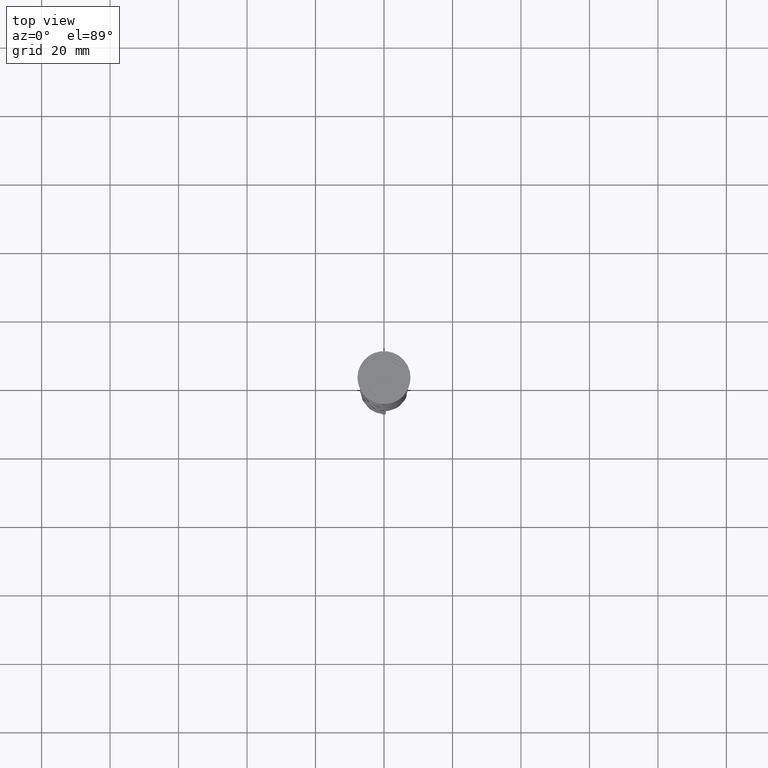
[diagram: clean part render]
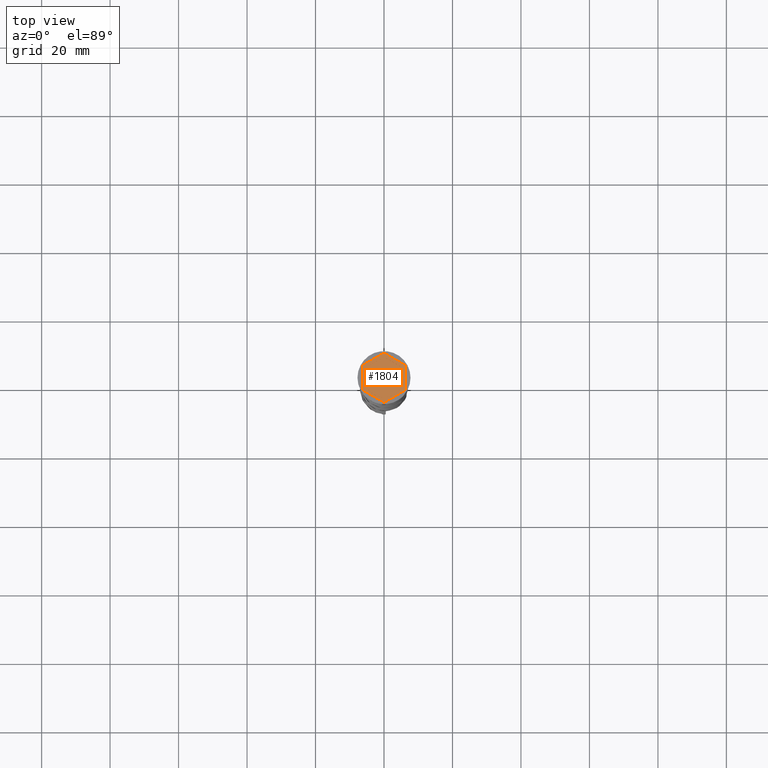
[diagram: same view with one face highlighted and labeled with its STEP entity id]
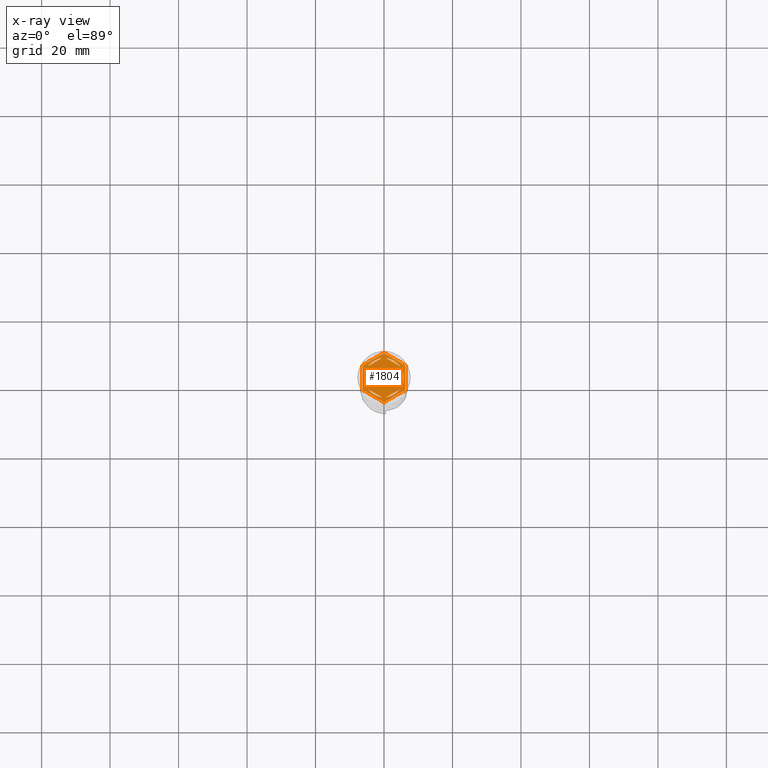
[diagram: x-ray of the same camera — body ghosted, the highlighted face saturated]
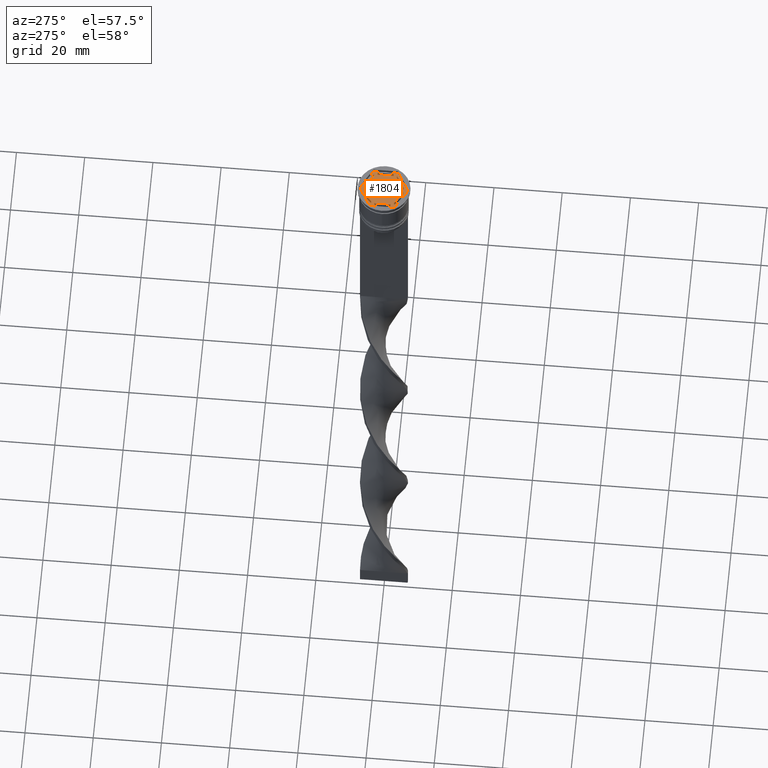
[diagram: same view with one face highlighted and labeled with its STEP entity id]
A machine part, top view. The second image highlights one B-rep face of the part: STEP entity #1804.
The next image is the same camera in x-ray: the body ghosted, the highlighted face saturated — about 0% of this face is hidden behind the body in this view.
A second angle (auxiliary view) of the same face is appended — the face is thin or edge-on in the first view.
In plain terms, the highlighted planar face has unit normal (0, 0, 1).
Its self-contained STEP definition (entity closure, byte-faithful):
#2 = CARTESIAN_POINT ( 'NONE',  ( 0.5939903988410126789, 5.719237309824160675, -1.000000000000000888 ) ) ;
#11 = CIRCLE ( 'NONE', #2467, 5.750000000000000000 ) ;
#16 = DIRECTION ( 'NONE',  ( -0.8660254037844384856, 0.5000000000000002220, 0.000000000000000000 ) ) ;
#46 = CARTESIAN_POINT ( 'NONE',  ( -5.249999999999999112, 3.031088913245535199, -1.000000000000000888 ) ) ;
#56 = CARTESIAN_POINT ( 'NONE',  ( 0.000000000000000000, 7.216878364870320084, -1.000000000000000000 ) ) ;
#98 = ORIENTED_EDGE ( 'NONE', *, *, #835, .F. ) ;
#127 = CIRCLE ( 'NONE', #3752, 5.750000000000000000 ) ;
#189 = CIRCLE ( 'NONE', #1109, 5.750000000000000000 ) ;
#217 = DIRECTION ( 'NONE',  ( 1.000000000000000000, 0.000000000000000000, 0.000000000000000000 ) ) ;
#232 = CARTESIAN_POINT ( 'NONE',  ( 8.673617379884035472E-16, 6.062177826491070398, -1.000000000000000888 ) ) ;
#238 = CARTESIAN_POINT ( 'NONE',  ( 6.249999999999998224, -3.608439182435161374, -1.000000000000000000 ) ) ;
#250 = DIRECTION ( 'NONE',  ( 1.000000000000000000, 0.000000000000000000, 0.000000000000000000 ) ) ;
#292 = EDGE_CURVE ( 'NONE', #1381, #1627, #629, .T. ) ;
#318 = DIRECTION ( 'NONE',  ( 0.000000000000000000, 1.000000000000000000, 0.000000000000000000 ) ) ;
#328 = CARTESIAN_POINT ( 'NONE',  ( 0.000000000000000000, 0.000000000000000000, -1.000000000000000000 ) ) ;
#336 = CARTESIAN_POINT ( 'NONE',  ( 4.656009601158990208, -3.374029429912445810, -1.000000000000000888 ) ) ;
#351 = VERTEX_POINT ( 'NONE', #3434 ) ;
#385 = FACE_BOUND ( 'NONE', #875, .T. ) ;
#428 = ORIENTED_EDGE ( 'NONE', *, *, #1781, .T. ) ;
#480 = DIRECTION ( 'NONE',  ( 0.8660254037844387076, 0.4999999999999999445, -0.000000000000000000 ) ) ;
#498 = AXIS2_PLACEMENT_3D ( 'NONE', #328, #593, #3485 ) ;
#500 = LINE ( 'NONE', #1683, #2407 ) ;
#524 = EDGE_CURVE ( 'NONE', #1620, #2147, #894, .T. ) ;
#525 = VERTEX_POINT ( 'NONE', #2663 ) ;
#527 = LINE ( 'NONE', #1711, #2160 ) ;
#593 = DIRECTION ( 'NONE',  ( 0.000000000000000000, 0.000000000000000000, 1.000000000000000000 ) ) ;
#598 = CARTESIAN_POINT ( 'NONE',  ( 5.249999999999996447, -3.031088913245536975, -1.000000000000000888 ) ) ;
#599 = VERTEX_POINT ( 'NONE', #3396 ) ;
#608 = DIRECTION ( 'NONE',  ( 0.000000000000000000, 0.000000000000000000, 1.000000000000000000 ) ) ;
#629 = CIRCLE ( 'NONE', #2299, 5.750000000000000000 ) ;
#631 = CARTESIAN_POINT ( 'NONE',  ( -0.5939903988410105695, -5.719237309824160675, -1.000000000000000888 ) ) ;
#689 = FACE_BOUND ( 'NONE', #1305, .T. ) ;
#723 = ORIENTED_EDGE ( 'NONE', *, *, #3227, .F. ) ;
#731 = ORIENTED_EDGE ( 'NONE', *, *, #292, .F. ) ;
#759 = DIRECTION ( 'NONE',  ( 0.8660254037844385966, -0.4999999999999998890, 0.000000000000000000 ) ) ;
#768 = EDGE_LOOP ( 'NONE', ( #1215, #723 ) ) ;
#798 = VERTEX_POINT ( 'NONE', #3583 ) ;
#835 = EDGE_CURVE ( 'NONE', #2909, #839, #1196, .T. ) ;
#839 = VERTEX_POINT ( 'NONE', #891 ) ;
#875 = EDGE_LOOP ( 'NONE', ( #2419, #3496 ) ) ;
#891 = CARTESIAN_POINT ( 'NONE',  ( 5.249999999999997335, -2.345207879911720639, -1.000000000000000888 ) ) ;
#894 = LINE ( 'NONE', #46, #3278 ) ;
#899 = EDGE_LOOP ( 'NONE', ( #3265, #428, #3539, #3161, #2853, #2495 ) ) ;
#911 = VERTEX_POINT ( 'NONE', #2262 ) ;
#998 = LINE ( 'NONE', #3614, #3566 ) ;
#999 = VERTEX_POINT ( 'NONE', #631 ) ;
#1018 = VERTEX_POINT ( 'NONE', #3557 ) ;
#1042 = EDGE_CURVE ( 'NONE', #1513, #1653, #3770, .T. ) ;
#1066 = EDGE_CURVE ( 'NONE', #3436, #2384, #127, .T. ) ;
#1071 = LINE ( 'NONE', #3625, #2525 ) ;
#1083 = CARTESIAN_POINT ( 'NONE',  ( 0.000000000000000000, 0.000000000000000000, -1.000000000000000000 ) ) ;
#1093 = EDGE_CURVE ( 'NONE', #525, #1513, #1707, .T. ) ;
#1100 = CARTESIAN_POINT ( 'NONE',  ( 4.656009601158988431, 3.374029429912448919, -1.000000000000000888 ) ) ;
#1109 = AXIS2_PLACEMENT_3D ( 'NONE', #2080, #608, #1792 ) ;
#1130 = DIRECTION ( 'NONE',  ( 2.403703357979454647E-16, 1.000000000000000000, 0.000000000000000000 ) ) ;
#1196 = LINE ( 'NONE', #598, #3690 ) ;
#1208 = FACE_OUTER_BOUND ( 'NONE', #899, .T. ) ;
#1215 = ORIENTED_EDGE ( 'NONE', *, *, #1066, .F. ) ;
#1231 = AXIS2_PLACEMENT_3D ( 'NONE', #3527, #2880, #250 ) ;
#1272 = ORIENTED_EDGE ( 'NONE', *, *, #1429, .F. ) ;
#1275 = LINE ( 'NONE', #2779, #3385 ) ;
#1288 = CIRCLE ( 'NONE', #3444, 5.750000000000000000 ) ;
#1305 = EDGE_LOOP ( 'NONE', ( #731, #3243 ) ) ;
#1348 = EDGE_CURVE ( 'NONE', #599, #2927, #11, .T. ) ;
#1374 = EDGE_CURVE ( 'NONE', #1018, #2152, #500, .T. ) ;
#1381 = VERTEX_POINT ( 'NONE', #1100 ) ;
#1395 = DIRECTION ( 'NONE',  ( 1.000000000000000000, 0.000000000000000000, 0.000000000000000000 ) ) ;
#1429 = EDGE_CURVE ( 'NONE', #2927, #599, #3412, .T. ) ;
#1461 = CARTESIAN_POINT ( 'NONE',  ( 6.250000000000000000, 3.608439182435161374, -1.000000000000000000 ) ) ;
#1501 = FACE_BOUND ( 'NONE', #2107, .T. ) ;
#1513 = VERTEX_POINT ( 'NONE', #3097 ) ;
#1535 = EDGE_CURVE ( 'NONE', #2147, #798, #2833, .T. ) ;
#1569 = ORIENTED_EDGE ( 'NONE', *, *, #1348, .F. ) ;
#1620 = VERTEX_POINT ( 'NONE', #2657 ) ;
#1627 = VERTEX_POINT ( 'NONE', #2 ) ;
#1653 = VERTEX_POINT ( 'NONE', #1795 ) ;
#1663 = EDGE_CURVE ( 'NONE', #798, #1620, #2100, .T. ) ;
#1683 = CARTESIAN_POINT ( 'NONE',  ( -6.249999999999999112, 3.608439182435158710, -1.000000000000000000 ) ) ;
#1707 = LINE ( 'NONE', #238, #3070 ) ;
#1711 = CARTESIAN_POINT ( 'NONE',  ( -1.734723475976807094E-15, -6.062177826491069510, -1.000000000000000888 ) ) ;
#1781 = EDGE_CURVE ( 'NONE', #1653, #1018, #2749, .T. ) ;
#1792 = DIRECTION ( 'NONE',  ( 1.000000000000000000, 0.000000000000000000, 0.000000000000000000 ) ) ;
#1795 = CARTESIAN_POINT ( 'NONE',  ( 0.000000000000000000, 7.216878364870320084, -1.000000000000000000 ) ) ;
#1804 = ADVANCED_FACE ( 'NONE', ( #689, #2158, #1891, #385, #1501, #2180, #1208 ), #3051, .T. ) ;
#1870 = DIRECTION ( 'NONE',  ( 0.000000000000000000, 0.000000000000000000, 1.000000000000000000 ) ) ;
#1873 = DIRECTION ( 'NONE',  ( -0.8660254037844385966, -0.5000000000000001110, 0.000000000000000000 ) ) ;
#1891 = FACE_BOUND ( 'NONE', #768, .T. ) ;
#1915 = VECTOR ( 'NONE', #480, 1000.000000000000000 ) ;
#1961 = DIRECTION ( 'NONE',  ( 0.8660254037844387076, -0.4999999999999998335, 0.000000000000000000 ) ) ;
#2080 = CARTESIAN_POINT ( 'NONE',  ( 0.000000000000000000, 0.000000000000000000, -1.000000000000000000 ) ) ;
#2100 = CIRCLE ( 'NONE', #1231, 5.750000000000000000 ) ;
#2107 = EDGE_LOOP ( 'NONE', ( #2444, #3612, #3031 ) ) ;
#2147 = VERTEX_POINT ( 'NONE', #3437 ) ;
#2152 = VERTEX_POINT ( 'NONE', #2611 ) ;
#2158 = FACE_BOUND ( 'NONE', #2640, .T. ) ;
#2160 = VECTOR ( 'NONE', #2255, 1000.000000000000114 ) ;
#2176 = CARTESIAN_POINT ( 'NONE',  ( 5.249999999999997335, 2.345207879911718862, -1.000000000000000888 ) ) ;
#2180 = FACE_BOUND ( 'NONE', #3731, .T. ) ;
#2214 = DIRECTION ( 'NONE',  ( 1.000000000000000000, 0.000000000000000000, 0.000000000000000000 ) ) ;
#2255 = DIRECTION ( 'NONE',  ( -0.8660254037844387076, -0.4999999999999997224, 0.000000000000000000 ) ) ;
#2262 = CARTESIAN_POINT ( 'NONE',  ( -4.656009601158991096, -3.374029429912444034, -1.000000000000000888 ) ) ;
#2268 = DIRECTION ( 'NONE',  ( 0.000000000000000000, 0.000000000000000000, 1.000000000000000000 ) ) ;
#2299 = AXIS2_PLACEMENT_3D ( 'NONE', #3740, #3456, #1395 ) ;
#2300 = EDGE_CURVE ( 'NONE', #999, #911, #3026, .T. ) ;
#2313 = DIRECTION ( 'NONE',  ( -0.8660254037844388186, 0.4999999999999997224, 0.000000000000000000 ) ) ;
#2384 = VERTEX_POINT ( 'NONE', #336 ) ;
#2407 = VECTOR ( 'NONE', #3718, 1000.000000000000000 ) ;
#2419 = ORIENTED_EDGE ( 'NONE', *, *, #2808, .F. ) ;
#2433 = EDGE_CURVE ( 'NONE', #2152, #351, #1071, .T. ) ;
#2444 = ORIENTED_EDGE ( 'NONE', *, *, #1535, .F. ) ;
#2445 = DIRECTION ( 'NONE',  ( 1.000000000000000000, 0.000000000000000000, -0.000000000000000000 ) ) ;
#2461 = EDGE_CURVE ( 'NONE', #1627, #1381, #1275, .T. ) ;
#2467 = AXIS2_PLACEMENT_3D ( 'NONE', #1083, #2849, #217 ) ;
#2495 = ORIENTED_EDGE ( 'NONE', *, *, #1093, .T. ) ;
#2525 = VECTOR ( 'NONE', #759, 1000.000000000000227 ) ;
#2529 = VECTOR ( 'NONE', #1873, 1000.000000000000114 ) ;
#2590 = VECTOR ( 'NONE', #16, 1000.000000000000114 ) ;
#2611 = CARTESIAN_POINT ( 'NONE',  ( -6.249999999999999112, -3.608439182435161374, -1.000000000000000000 ) ) ;
#2640 = EDGE_LOOP ( 'NONE', ( #2802, #98 ) ) ;
#2647 = CARTESIAN_POINT ( 'NONE',  ( -5.249999999999999112, -3.031088913245534311, -1.000000000000000888 ) ) ;
#2657 = CARTESIAN_POINT ( 'NONE',  ( -5.249999999999999112, -2.345207879911715310, -1.000000000000000888 ) ) ;
#2663 = CARTESIAN_POINT ( 'NONE',  ( 6.249999999999998224, -3.608439182435161374, -1.000000000000000000 ) ) ;
#2749 = LINE ( 'NONE', #56, #2529 ) ;
#2779 = CARTESIAN_POINT ( 'NONE',  ( 5.249999999999997335, 3.031088913245537864, -1.000000000000000888 ) ) ;
#2787 = CARTESIAN_POINT ( 'NONE',  ( 0.000000000000000000, 0.000000000000000000, -1.000000000000000000 ) ) ;
#2802 = ORIENTED_EDGE ( 'NONE', *, *, #2984, .F. ) ;
#2808 = EDGE_CURVE ( 'NONE', #911, #999, #189, .T. ) ;
#2830 = VECTOR ( 'NONE', #2313, 1000.000000000000000 ) ;
#2833 = CIRCLE ( 'NONE', #498, 5.750000000000000000 ) ;
#2849 = DIRECTION ( 'NONE',  ( 0.000000000000000000, 0.000000000000000000, 1.000000000000000000 ) ) ;
#2853 = ORIENTED_EDGE ( 'NONE', *, *, #2857, .T. ) ;
#2857 = EDGE_CURVE ( 'NONE', #351, #525, #998, .T. ) ;
#2871 = CARTESIAN_POINT ( 'NONE',  ( 0.000000000000000000, 0.000000000000000000, -1.000000000000000000 ) ) ;
#2880 = DIRECTION ( 'NONE',  ( 0.000000000000000000, 0.000000000000000000, 1.000000000000000000 ) ) ;
#2909 = VERTEX_POINT ( 'NONE', #2176 ) ;
#2926 = DIRECTION ( 'NONE',  ( -1.430775808321103440E-16, -1.000000000000000000, 0.000000000000000000 ) ) ;
#2927 = VERTEX_POINT ( 'NONE', #3384 ) ;
#2984 = EDGE_CURVE ( 'NONE', #839, #2909, #1288, .T. ) ;
#3010 = AXIS2_PLACEMENT_3D ( 'NONE', #3035, #3579, #2445 ) ;
#3026 = LINE ( 'NONE', #2647, #2590 ) ;
#3031 = ORIENTED_EDGE ( 'NONE', *, *, #1663, .F. ) ;
#3035 = CARTESIAN_POINT ( 'NONE',  ( 0.000000000000000000, 0.000000000000000000, -1.000000000000000000 ) ) ;
#3051 = PLANE ( 'NONE',  #3010 ) ;
#3070 = VECTOR ( 'NONE', #1130, 1000.000000000000000 ) ;
#3091 = DIRECTION ( 'NONE',  ( 0.8660254037844385966, 0.5000000000000001110, 0.000000000000000000 ) ) ;
#3097 = CARTESIAN_POINT ( 'NONE',  ( 6.250000000000000000, 3.608439182435161374, -1.000000000000000000 ) ) ;
#3161 = ORIENTED_EDGE ( 'NONE', *, *, #2433, .T. ) ;
#3227 = EDGE_CURVE ( 'NONE', #2384, #3436, #527, .T. ) ;
#3241 = CARTESIAN_POINT ( 'NONE',  ( 0.5939903988410074609, -5.719237309824160675, -1.000000000000000888 ) ) ;
#3243 = ORIENTED_EDGE ( 'NONE', *, *, #2461, .F. ) ;
#3265 = ORIENTED_EDGE ( 'NONE', *, *, #1042, .T. ) ;
#3278 = VECTOR ( 'NONE', #318, 1000.000000000000000 ) ;
#3384 = CARTESIAN_POINT ( 'NONE',  ( -4.656009601158989319, 3.374029429912446698, -1.000000000000000888 ) ) ;
#3385 = VECTOR ( 'NONE', #1961, 1000.000000000000114 ) ;
#3396 = CARTESIAN_POINT ( 'NONE',  ( -0.5939903988410105695, 5.719237309824159787, -1.000000000000000888 ) ) ;
#3412 = LINE ( 'NONE', #232, #1915 ) ;
#3434 = CARTESIAN_POINT ( 'NONE',  ( 8.729740977282959667E-16, -7.216878364870321860, -1.000000000000000000 ) ) ;
#3435 = DIRECTION ( 'NONE',  ( 1.000000000000000000, 0.000000000000000000, 0.000000000000000000 ) ) ;
#3436 = VERTEX_POINT ( 'NONE', #3241 ) ;
#3437 = CARTESIAN_POINT ( 'NONE',  ( -5.249999999999999112, 2.345207879911715310, -1.000000000000000888 ) ) ;
#3444 = AXIS2_PLACEMENT_3D ( 'NONE', #2787, #1870, #2214 ) ;
#3456 = DIRECTION ( 'NONE',  ( 0.000000000000000000, 0.000000000000000000, 1.000000000000000000 ) ) ;
#3485 = DIRECTION ( 'NONE',  ( 1.000000000000000000, 0.000000000000000000, 0.000000000000000000 ) ) ;
#3496 = ORIENTED_EDGE ( 'NONE', *, *, #2300, .F. ) ;
#3527 = CARTESIAN_POINT ( 'NONE',  ( 0.000000000000000000, 0.000000000000000000, -1.000000000000000000 ) ) ;
#3539 = ORIENTED_EDGE ( 'NONE', *, *, #1374, .T. ) ;
#3557 = CARTESIAN_POINT ( 'NONE',  ( -6.249999999999999112, 3.608439182435158710, -1.000000000000000000 ) ) ;
#3566 = VECTOR ( 'NONE', #3091, 1000.000000000000000 ) ;
#3579 = DIRECTION ( 'NONE',  ( 0.000000000000000000, 0.000000000000000000, 1.000000000000000000 ) ) ;
#3583 = CARTESIAN_POINT ( 'NONE',  ( -5.750000000000000000, 0.000000000000000000, -1.000000000000000000 ) ) ;
#3612 = ORIENTED_EDGE ( 'NONE', *, *, #524, .F. ) ;
#3614 = CARTESIAN_POINT ( 'NONE',  ( 8.729740977282959667E-16, -7.216878364870321860, -1.000000000000000000 ) ) ;
#3625 = CARTESIAN_POINT ( 'NONE',  ( -6.249999999999999112, -3.608439182435161374, -1.000000000000000000 ) ) ;
#3690 = VECTOR ( 'NONE', #2926, 1000.000000000000000 ) ;
#3718 = DIRECTION ( 'NONE',  ( 0.000000000000000000, -1.000000000000000000, 0.000000000000000000 ) ) ;
#3731 = EDGE_LOOP ( 'NONE', ( #1569, #1272 ) ) ;
#3740 = CARTESIAN_POINT ( 'NONE',  ( 0.000000000000000000, 0.000000000000000000, -1.000000000000000000 ) ) ;
#3752 = AXIS2_PLACEMENT_3D ( 'NONE', #2871, #2268, #3435 ) ;
#3770 = LINE ( 'NONE', #1461, #2830 ) ;